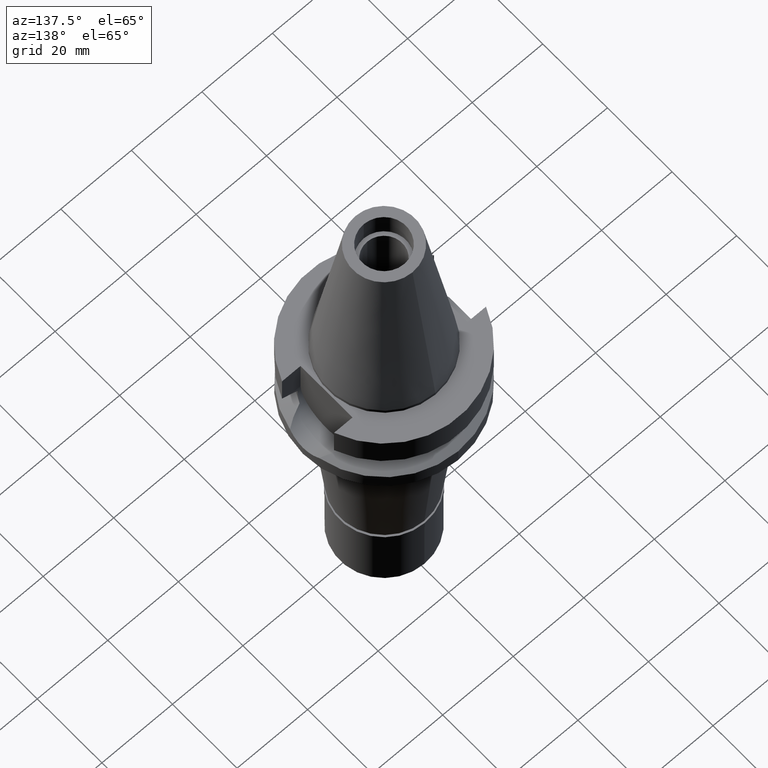
[diagram: clean part render]
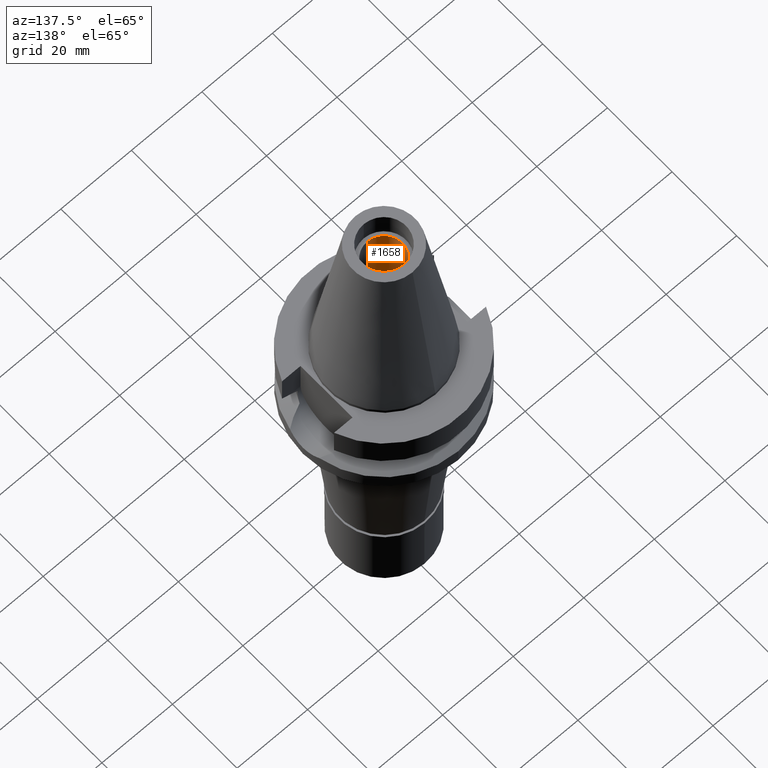
[diagram: same view with one face highlighted and labeled with its STEP entity id]
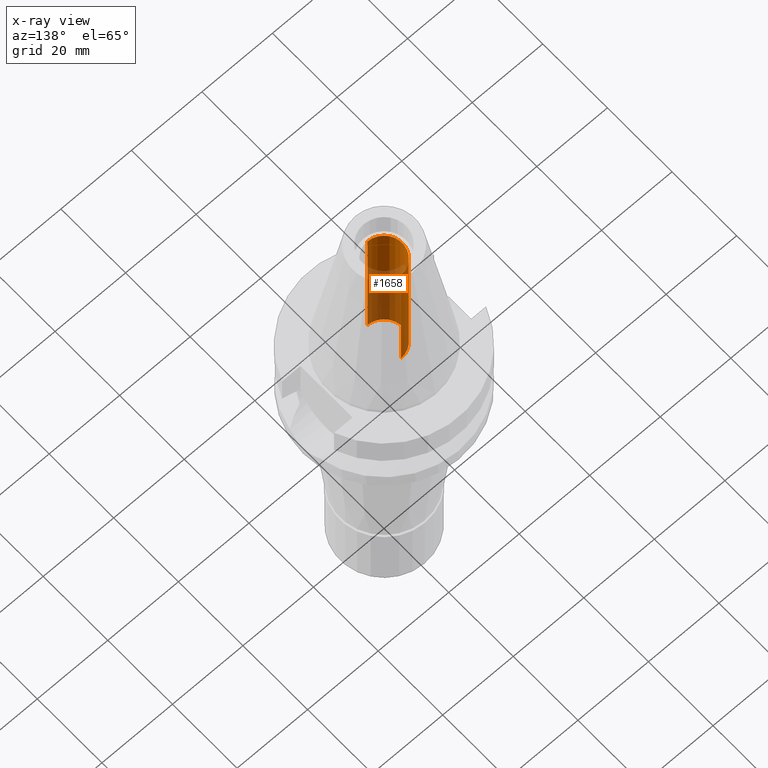
[diagram: x-ray of the same camera — body ghosted, the highlighted face saturated]
A machine part, auxiliary view. The second image highlights one B-rep face of the part: STEP entity #1658.
The next image is the same camera in x-ray: the body ghosted, the highlighted face saturated — about 55% of this face is hidden behind the body in this view.
In plain terms, the highlighted cylindrical surface (edge-blend (fillet) strip) has radius 5.2 mm, axis along (0, 0, -1).
Its self-contained STEP definition (entity closure, byte-faithful):
#12 = CARTESIAN_POINT ( 'NONE',  ( 0.0000000000000000000, 0.0000000000000000000, 41.39999999999999858 ) ) ;
#70 = CARTESIAN_POINT ( 'NONE',  ( 0.0000000000000000000, -5.200000000000000178, 0.0000000000000000000 ) ) ;
#103 = CARTESIAN_POINT ( 'NONE',  ( 0.0000000000000000000, -5.200000000000000178, 41.39999999999999858 ) ) ;
#111 = VERTEX_POINT ( 'NONE', #1867 ) ;
#197 = CIRCLE ( 'NONE', #2264, 5.200000000000000178 ) ;
#290 = EDGE_CURVE ( 'NONE', #2584, #111, #1632, .T. ) ;
#348 = EDGE_CURVE ( 'NONE', #869, #2584, #828, .T. ) ;
#635 = CARTESIAN_POINT ( 'NONE',  ( 0.0000000000000000000, 5.200000000000000178, 0.0000000000000000000 ) ) ;
#714 = ORIENTED_EDGE ( 'NONE', *, *, #2626, .F. ) ;
#745 = CYLINDRICAL_SURFACE ( 'NONE', #2954, 5.200000000000000178 ) ;
#756 = ORIENTED_EDGE ( 'NONE', *, *, #348, .T. ) ;
#821 = EDGE_CURVE ( 'NONE', #111, #1162, #197, .T. ) ;
#828 = CIRCLE ( 'NONE', #1974, 5.200000000000000178 ) ;
#869 = VERTEX_POINT ( 'NONE', #70 ) ;
#937 = ORIENTED_EDGE ( 'NONE', *, *, #821, .T. ) ;
#1022 = DIRECTION ( 'NONE',  ( 0.0000000000000000000, 0.0000000000000000000, 1.000000000000000000 ) ) ;
#1053 = LINE ( 'NONE', #1256, #2332 ) ;
#1162 = VERTEX_POINT ( 'NONE', #103 ) ;
#1175 = DIRECTION ( 'NONE',  ( 0.0000000000000000000, 0.0000000000000000000, 1.000000000000000000 ) ) ;
#1184 = VECTOR ( 'NONE', #1175, 1000.000000000000000 ) ;
#1256 = CARTESIAN_POINT ( 'NONE',  ( 0.0000000000000000000, -5.200000000000000178, 0.0000000000000000000 ) ) ;
#1266 = ORIENTED_EDGE ( 'NONE', *, *, #290, .T. ) ;
#1418 = DIRECTION ( 'NONE',  ( 0.0000000000000000000, 0.0000000000000000000, -1.000000000000000000 ) ) ;
#1448 = EDGE_LOOP ( 'NONE', ( #937, #714, #756, #1266 ) ) ;
#1453 = CARTESIAN_POINT ( 'NONE',  ( 0.0000000000000000000, 5.200000000000000178, 0.0000000000000000000 ) ) ;
#1479 = DIRECTION ( 'NONE',  ( 0.0000000000000000000, 0.0000000000000000000, -1.000000000000000000 ) ) ;
#1632 = LINE ( 'NONE', #635, #1184 ) ;
#1658 = ADVANCED_FACE ( 'NONE', ( #2394 ), #745, .F. ) ;
#1711 = CARTESIAN_POINT ( 'NONE',  ( 0.0000000000000000000, 0.0000000000000000000, 0.0000000000000000000 ) ) ;
#1867 = CARTESIAN_POINT ( 'NONE',  ( 0.0000000000000000000, 5.200000000000000178, 41.39999999999999858 ) ) ;
#1900 = DIRECTION ( 'NONE',  ( 0.0000000000000000000, 0.0000000000000000000, 1.000000000000000000 ) ) ;
#1974 = AXIS2_PLACEMENT_3D ( 'NONE', #3033, #1418, #2823 ) ;
#2177 = DIRECTION ( 'NONE',  ( 0.0000000000000000000, -1.000000000000000000, 0.0000000000000000000 ) ) ;
#2264 = AXIS2_PLACEMENT_3D ( 'NONE', #12, #1900, #2454 ) ;
#2332 = VECTOR ( 'NONE', #1022, 1000.000000000000000 ) ;
#2394 = FACE_OUTER_BOUND ( 'NONE', #1448, .T. ) ;
#2454 = DIRECTION ( 'NONE',  ( 0.0000000000000000000, 1.000000000000000000, 0.0000000000000000000 ) ) ;
#2584 = VERTEX_POINT ( 'NONE', #1453 ) ;
#2626 = EDGE_CURVE ( 'NONE', #869, #1162, #1053, .T. ) ;
#2823 = DIRECTION ( 'NONE',  ( 0.0000000000000000000, -1.000000000000000000, 0.0000000000000000000 ) ) ;
#2954 = AXIS2_PLACEMENT_3D ( 'NONE', #1711, #1479, #2177 ) ;
#3033 = CARTESIAN_POINT ( 'NONE',  ( 0.0000000000000000000, 0.0000000000000000000, 0.0000000000000000000 ) ) ;